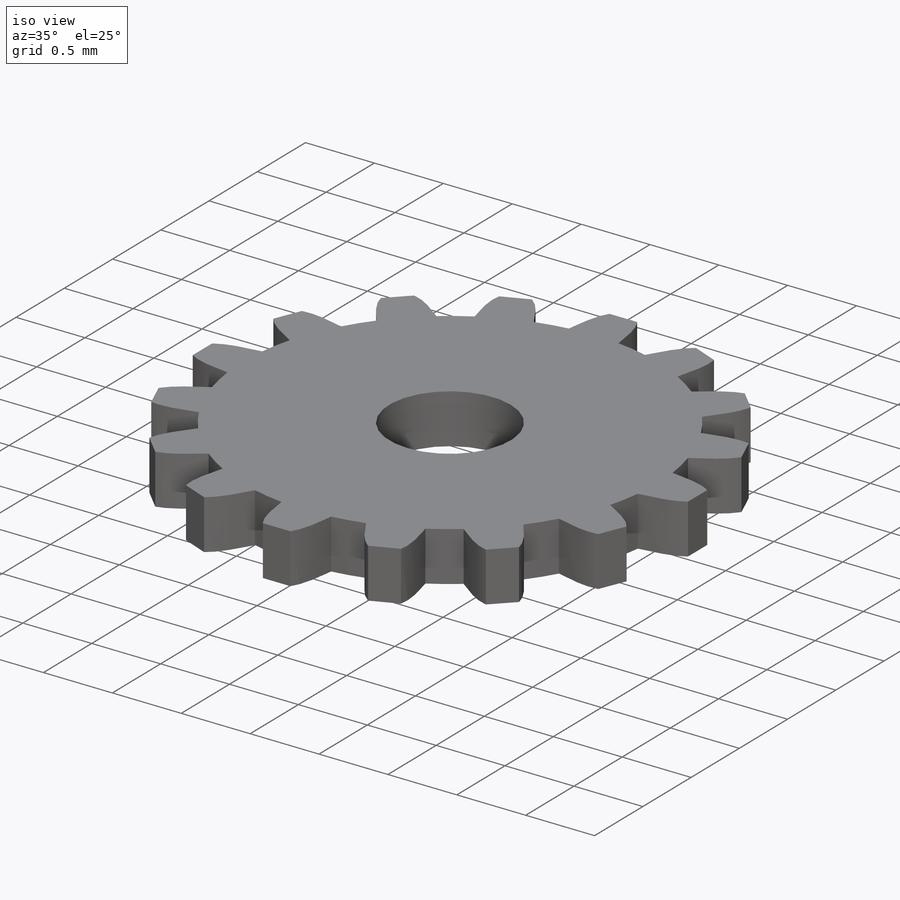
[diagram: iso view]
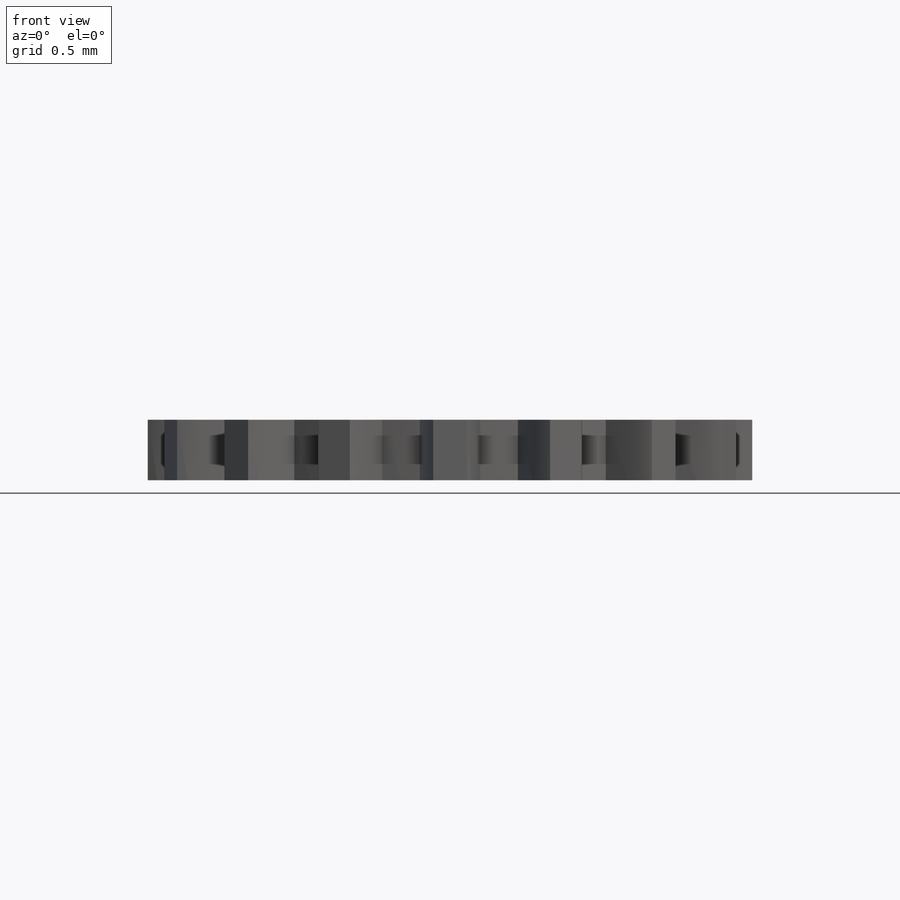
[diagram: front view]
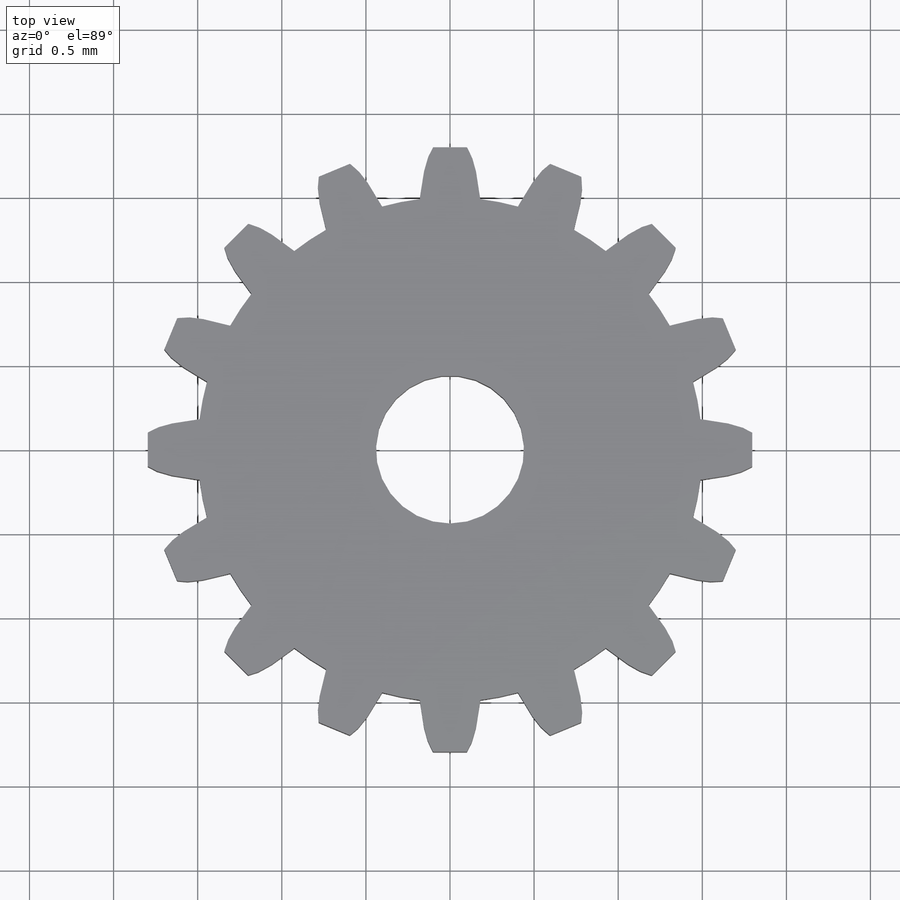
[diagram: top view]
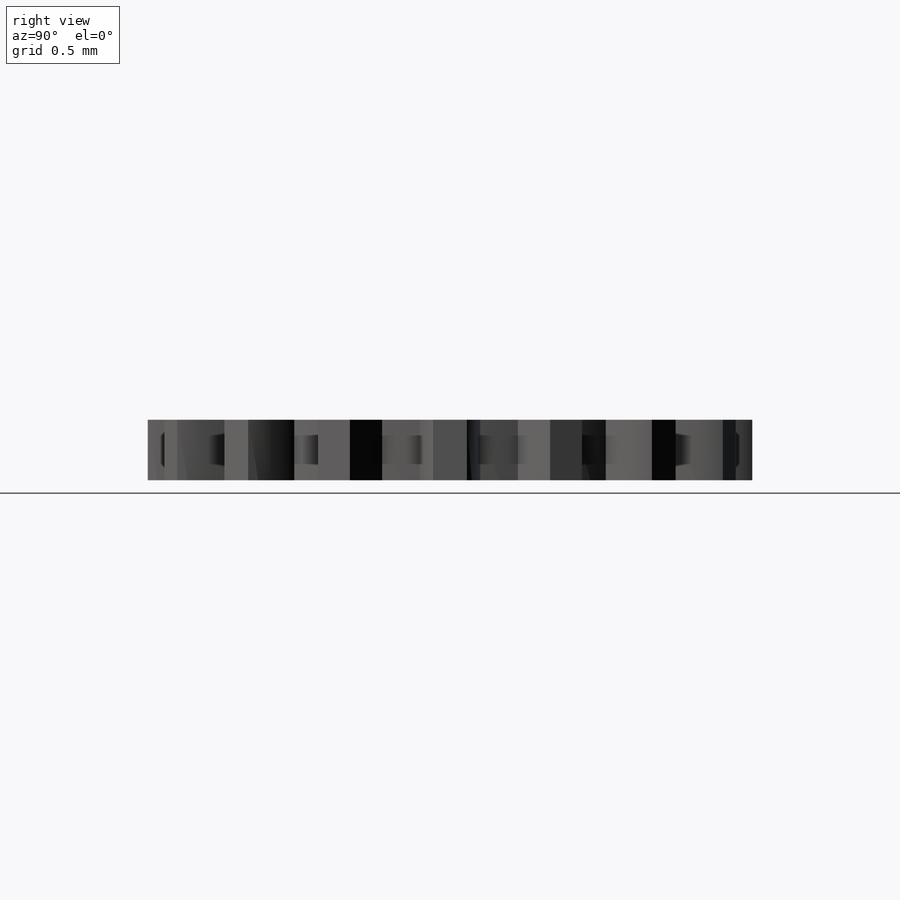
[diagram: right view]
SOLIDWORKS PART (.sldprt)
format: sldprt  version: not decoded by parser v0  size: 299,008 bytes
history: native  units: mm
features: sketch x3, extrude x2, material x1, pattern_circular x1, cut_extrude x1 (+11 scaffold rows collapsed)
feature tree (19):
  scaffold x11  (default folders/planes/origin — collapsed)
  material  "Material <not specified>"
  sketch  "Sketch1"  dims[D1=4.4mm D2=3.0mm]
  extrude  "Boss-Extrude1"  Depth=0.36mm
  sketch  "Sketch2"  dims[c1.D1=3.6mm c1.D2=0.1mm c1.D3=0.18mm c2.D2=0.1mm c2.D3=0.18mm]
  extrude  "Boss-Extrude2"  [1 undecoded]
  pattern_circular  "CirPattern1"  Count=16 Angle=360deg
  sketch  "Sketch3"  dims[D1=0.88mm]
  cut_extrude  "Cut-Extrude1"  [1 undecoded]
decode coverage: 5 of 7 modeling features carry decoded parameters
note: 2 parameter values undecoded
note: suppression state not decoded; provenance and decode notes live in map.json
